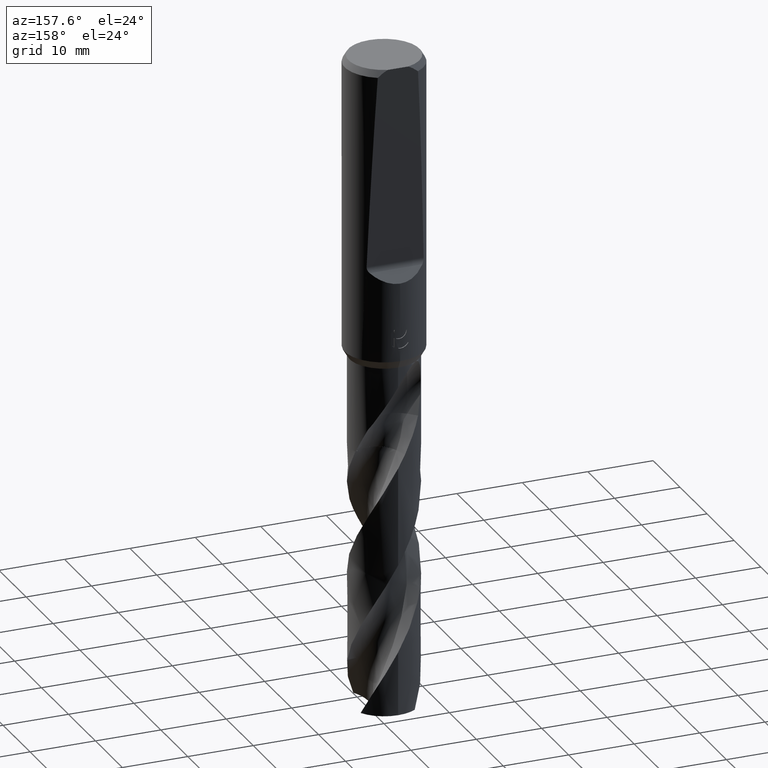
[diagram: clean part render]
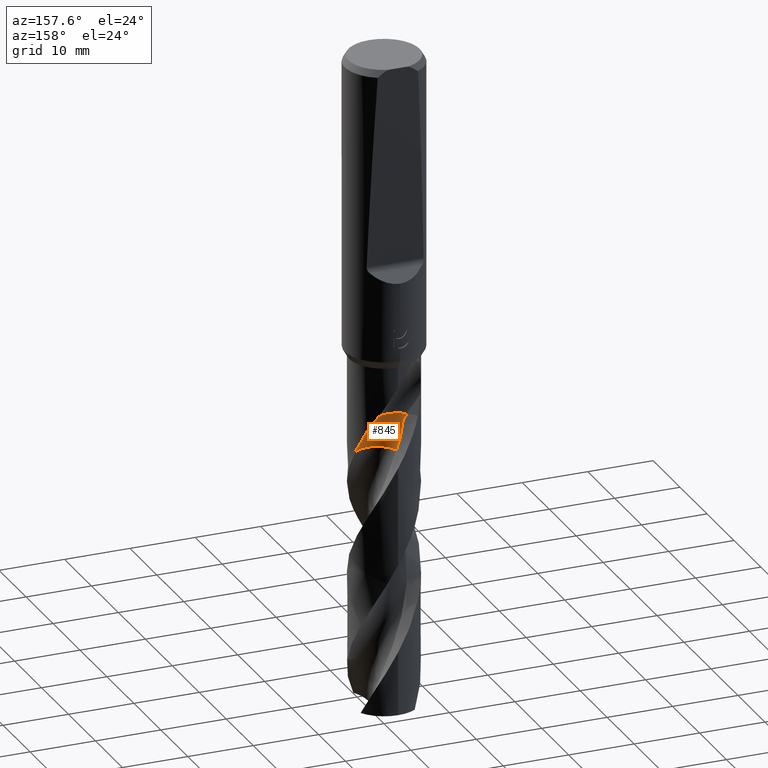
[diagram: same view with one face highlighted and labeled with its STEP entity id]
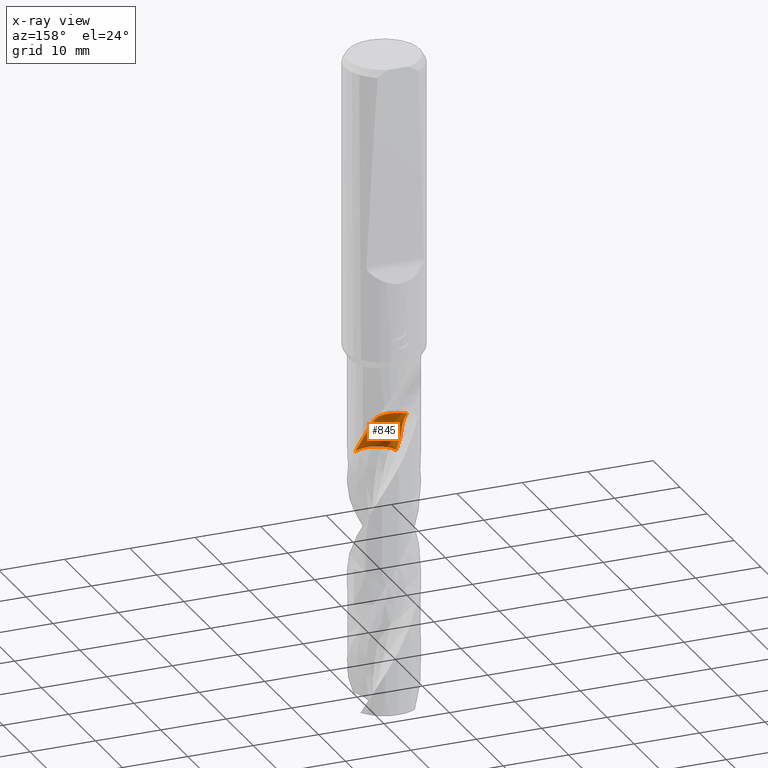
[diagram: x-ray of the same camera — body ghosted, the highlighted face saturated]
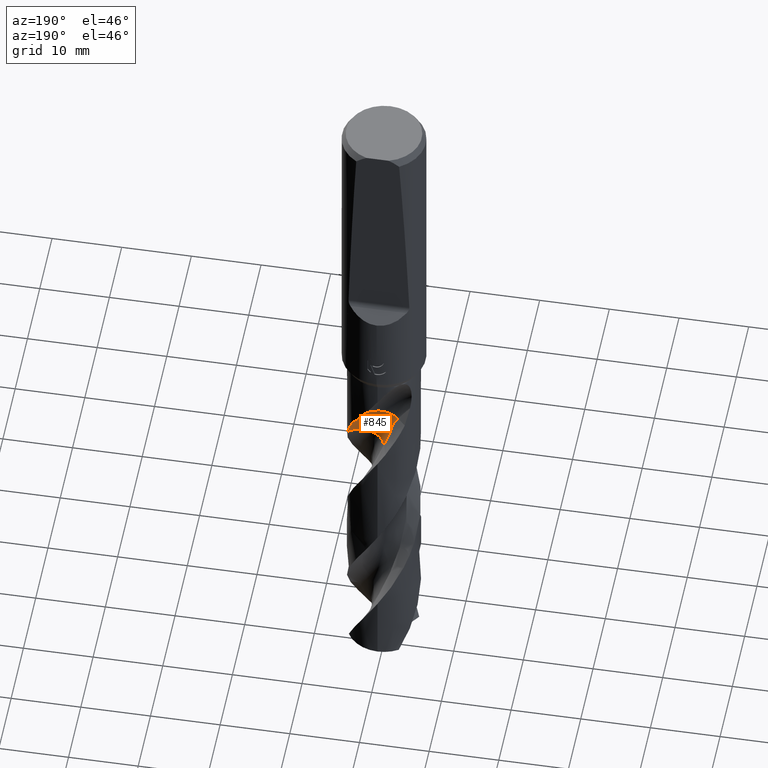
[diagram: same view with one face highlighted and labeled with its STEP entity id]
A machine part, auxiliary view. The second image highlights one B-rep face of the part: STEP entity #845.
The next image is the same camera in x-ray: the body ghosted, the highlighted face saturated — about 0% of this face is hidden behind the body in this view.
A second angle (auxiliary view) of the same face is appended — the face is thin or edge-on in the first view.
In plain terms, the highlighted face is a freeform B-spline surface patch.
Its self-contained STEP definition (entity closure, byte-faithful):
#353=VERTEX_POINT('',#943);
#371=EDGE_CURVE('',#723,#805,#962,.T.);
#443=VERTEX_POINT('',#1040);
#461=EDGE_CURVE('',#443,#723,#1059,.T.);
#547=EDGE_CURVE('',#353,#741,#1156,.T.);
#593=EDGE_CURVE('',#805,#353,#1202,.T.);
#723=VERTEX_POINT('',#1345);
#741=VERTEX_POINT('',#1365);
#805=VERTEX_POINT('',#1435);
#837=EDGE_CURVE('',#741,#443,#1468,.T.);
#845=ADVANCED_FACE('',(#1478),#1479,.F.);
#943=CARTESIAN_POINT('',(5.02114459693165,1.53316891982068,-60.0));
#962=B_SPLINE_CURVE_WITH_KNOTS('',3,(#1877,#1878,#1879,#1880,#1881,#1882,#1883,#1884,#1885,#1886,#1887,#1888,#1889,#1890,#1891,#1892,#1893,#1894,#1895,#1896,#1897,#1898,#1899,#1900,#1901,#1902,#1903,#1904,#1905,#1906,#1907,#1908,#1909,#1910,#1911,#1912,#1913,#1914,#1915,#1916,#1917,#1918,#1919,#1920,#1921,#1922,#1923,#1924,#1925,#1926,#1927,#1928,#1929,#1930,#1931,#1932,#1933,#1934),.UNSPECIFIED.,.F.,.F.,(4,1,2,2,2,2,2,2,1,2,1,2,1,2,1,2,1,2,1,2,1,2,1,2,1,2,1,2,1,2,1,2,1,2,2,4),(0.0,0.946443982491389,1.89288796498278,2.83933194747417,3.78577592996556,4.73221991245695,5.67866389494833,7.57155185993111,9.46443982491389,11.3573277898967,13.2502157548794,15.1431037198622,17.035991684845,18.9288796498278,20.8217676148106,22.7146555797933,24.6075435447761,26.5004315097589,28.3933194747417,30.2862074397245,32.1790954047072,34.07198336969,35.9648713346728,37.8577592996556,39.7506472646383,41.6435352296211,43.5364231946039,45.4293111595867,47.3221991245695,49.2150870895522,51.107975054535,53.0008630195178,54.8937509845006,56.7866389494833,58.6795269144661,60.5724148794489),.UNSPECIFIED.);
#1040=CARTESIAN_POINT('',(-0.563884144710428,1.62070661058819,-54.943));
#1059=CIRCLE('',#3233,3.5);
#1156=B_SPLINE_CURVE_WITH_KNOTS('',3,(#5971,#5972,#5973,#5974,#5975,#5976,#5977,#5978,#5979,#5980,#5981,#5982,#5983,#5984),.UNSPECIFIED.,.F.,.F.,(4,2,2,2,2,2,4),(0.0,1.45953664478286,1.73624144334719,2.75274637449032,3.80473915515668,4.39845383951045,5.75617239746406),.UNSPECIFIED.);
#1202=B_SPLINE_CURVE_WITH_KNOTS('',3,(#6165,#6166,#6167,#6168,#6169,#6170,#6171,#6172,#6173,#6174,#6175,#6176,#6177,#6178),.UNSPECIFIED.,.F.,.F.,(4,2,2,2,2,2,4),(0.0,1.3665820209171,2.73238531721024,4.09801201521994,5.46414487560331,6.38323774212243,7.30235332137637),.UNSPECIFIED.);
#1345=CARTESIAN_POINT('',(-2.47487373408221,2.6001262659178,-54.943));
#1365=CARTESIAN_POINT('',(3.34537559219275,4.04610456453624,-54.943));
#1435=CARTESIAN_POINT('',(-0.555753608563037,3.25365689234293,-60.0));
#1468=CIRCLE('',#8411,3.5);
#1478=FACE_OUTER_BOUND('',#8421,.T.);
#1479=B_SPLINE_SURFACE_WITH_KNOTS('',3,3,((#8422,#8423,#8424,#8425,#8426,#8427,#8428,#8429,#8430,#8431,#8432,#8433,#8434,#8435,#8436,#8437,#8438,#8439,#8440,#8441,#8442,#8443,#8444,#8445,#8446,#8447,#8448,#8449,#8450,#8451,#8452,#8453,#8454,#8455,#8456,#8457,#8458,#8459,#8460,#8461,#8462,#8463,#8464,#8465,#8466,#8467,#8468,#8469,#8470,#8471,#8472,#8473,#8474,#8475,#8476,#8477,#8478,#8479),(#8480,#8481,#8482,#8483,#8484,#8485,#8486,#8487,#8488,#8489,#8490,#8491,#8492,#8493,#8494,#8495,#8496,#8497,#8498,#8499,#8500,#8501,#8502,#8503,#8504,#8505,#8506,#8507,#8508,#8509,#8510,#8511,#8512,#8513,#8514,#8515,#8516,#8517,#8518,#8519,#8520,#8521,#8522,#8523,#8524,#8525,#8526,#8527,#8528,#8529,#8530,#8531,#8532,#8533,#8534,#8535,#8536,#8537),(#8538,#8539,#8540,#8541,#8542,#8543,#8544,#8545,#8546,#8547,#8548,#8549,#8550,#8551,#8552,#8553,#8554,#8555,#8556,#8557,#8558,#8559,#8560,#8561,#8562,#8563,#8564,#8565,#8566,#8567,#8568,#8569,#8570,#8571,#8572,#8573,#8574,#8575,#8576,#8577,#8578,#8579,#8580,#8581,#8582,#8583,#8584,#8585,#8586,#8587,#8588,#8589,#8590,#8591,#8592,#8593,#8594,#8595),(#8596,#8597,#8598,#8599,#8600,#8601,#8602,#8603,#8604,#8605,#8606,#8607,#8608,#8609,#8610,#8611,#8612,#8613,#8614,#8615,#8616,#8617,#8618,#8619,#8620,#8621,#8622,#8623,#8624,#8625,#8626,#8627,#8628,#8629,#8630,#8631,#8632,#8633,#8634,#8635,#8636,#8637,#8638,#8639,#8640,#8641,#8642,#8643,#8644,#8645,#8646,#8647,#8648,#8649,#8650,#8651,#8652,#8653),(#8654,#8655,#8656,#8657,#8658,#8659,#8660,#8661,#8662,#8663,#8664,#8665,#8666,#8667,#8668,#8669,#8670,#8671,#8672,#8673,#8674,#8675,#8676,#8677,#8678,#8679,#8680,#8681,#8682,#8683,#8684,#8685,#8686,#8687,#8688,#8689,#8690,#8691,#8692,#8693,#8694,#8695,#8696,#8697,#8698,#8699,#8700,#8701,#8702,#8703,#8704,#8705,#8706,#8707,#8708,#8709,#8710,#8711),(#8712,#8713,#8714,#8715,#8716,#8717,#8718,#8719,#8720,#8721,#8722,#8723,#8724,#8725,#8726,#8727,#8728,#8729,#8730,#8731,#8732,#8733,#8734,#8735,#8736,#8737,#8738,#8739,#8740,#8741,#8742,#8743,#8744,#8745,#8746,#8747,#8748,#8749,#8750,#8751,#8752,#8753,#8754,#8755,#8756,#8757,#8758,#8759,#8760,#8761,#8762,#8763,#8764,#8765,#8766,#8767,#8768,#8769),(#8770,#8771,#8772,#8773,#8774,#8775,#8776,#8777,#8778,#8779,#8780,#8781,#8782,#8783,#8784,#8785,#8786,#8787,#8788,#8789,#8790,#8791,#8792,#8793,#8794,#8795,#8796,#8797,#8798,#8799,#8800,#8801,#8802,#8803,#8804,#8805,#8806,#8807,#8808,#8809,#8810,#8811,#8812,#8813,#8814,#8815,#8816,#8817,#8818,#8819,#8820,#8821,#8822,#8823,#8824,#8825,#8826,#8827),(#8828,#8829,#8830,#8831,#8832,#8833,#8834,#8835,#8836,#8837,#8838,#8839,#8840,#8841,#8842,#8843,#8844,#8845,#8846,#8847,#8848,#8849,#8850,#8851,#8852,#8853,#8854,#8855,#8856,#8857,#8858,#8859,#8860,#8861,#8862,#8863,#8864,#8865,#8866,#8867,#8868,#8869,#8870,#8871,#8872,#8873,#8874,#8875,#8876,#8877,#8878,#8879,#8880,#8881,#8882,#8883,#8884,#8885),(#8886,#8887,#8888,#8889,#8890,#8891,#8892,#8893,#8894,#8895,#8896,#8897,#8898,#8899,#8900,#8901,#8902,#8903,#8904,#8905,#8906,#8907,#8908,#8909,#8910,#8911,#8912,#8913,#8914,#8915,#8916,#8917,#8918,#8919,#8920,#8921,#8922,#8923,#8924,#8925,#8926,#8927,#8928,#8929,#8930,#8931,#8932,#8933,#8934,#8935,#8936,#8937,#8938,#8939,#8940,#8941,#8942,#8943),(#8944,#8945,#8946,#8947,#8948,#8949,#8950,#8951,#8952,#8953,#8954,#8955,#8956,#8957,#8958,#8959,#8960,#8961,#8962,#8963,#8964,#8965,#8966,#8967,#8968,#8969,#8970,#8971,#8972,#8973,#8974,#8975,#8976,#8977,#8978,#8979,#8980,#8981,#8982,#8983,#8984,#8985,#8986,#8987,#8988,#8989,#8990,#8991,#8992,#8993,#8994,#8995,#8996,#8997,#8998,#8999,#9000,#9001),(#9002,#9003,#9004,#9005,#9006,#9007,#9008,#9009,#9010,#9011,#9012,#9013,#9014,#9015,#9016,#9017,#9018,#9019,#9020,#9021,#9022,#9023,#9024,#9025,#9026,#9027,#9028,#9029,#9030,#9031,#9032,#9033,#9034,#9035,#9036,#9037,#9038,#9039,#9040,#9041,#9042,#9043,#9044,#9045,#9046,#9047,#9048,#9049,#9050,#9051,#9052,#9053,#9054,#9055,#9056,#9057,#9058,#9059)),.UNSPECIFIED.,.F.,.F.,.F.,(4,1,1,1,1,1,1,1,4),(4,1,2,2,2,2,2,2,1,2,1,2,1,2,1,2,1,2,1,2,1,2,1,2,1,2,1,2,1,2,1,2,1,2,2,4),(-2.39901857237366E-016,0.392700971525963,0.785401943051926,1.17810291457789,1.57080388610385,1.96350485762981,2.35620582915578,2.74890680068174,3.1416077722077),(0.0,0.946443982491389,1.89288796498278,2.83933194747417,3.78577592996556,4.73221991245695,5.67866389494833,7.57155185993111,9.46443982491389,11.3573277898967,13.2502157548794,15.1431037198622,17.035991684845,18.9288796498278,20.8217676148106,22.7146555797933,24.6075435447761,26.5004315097589,28.3933194747417,30.2862074397245,32.1790954047072,34.07198336969,35.9648713346728,37.8577592996556,39.7506472646383,41.6435352296211,43.5364231946039,45.4293111595867,47.3221991245695,49.2150870895522,51.107975054535,53.0008630195178,54.8937509845006,56.7866389494833,58.6795269144661,60.5724148794489),.UNSPECIFIED.);
#1877=CARTESIAN_POINT('',(-2.4748737340822,2.6001262659178,-54.943));
#1878=CARTESIAN_POINT('',(-2.27351638195796,2.58742748921643,-55.1877789103807));
#1879=CARTESIAN_POINT('',(-1.9415901267603,2.59845618372092,-55.6762779263662));
#1880=CARTESIAN_POINT('',(-1.75150800911181,2.67434617195247,-56.163885936996));
#1881=CARTESIAN_POINT('',(-1.62629745382989,2.78793800961377,-56.653886991376));
#1882=CARTESIAN_POINT('',(-1.5701941947917,2.84763826918763,-56.8993317770672));
#1883=CARTESIAN_POINT('',(-1.46633182949196,2.97370083400805,-57.3925242642537));
#1884=CARTESIAN_POINT('',(-1.39821417140131,3.02406725904404,-57.639014577145));
#1885=CARTESIAN_POINT('',(-1.23776635554506,3.09814724549622,-58.1300739018366));
#1886=CARTESIAN_POINT('',(-1.1506484338099,3.12683693470541,-58.3751677705233));
#1887=CARTESIAN_POINT('',(-0.967048017738718,3.16832741668427,-58.8638598888724));
#1888=CARTESIAN_POINT('',(-0.877161342690742,3.18842756558869,-59.1083755716162));
#1889=CARTESIAN_POINT('',(-0.612460879576035,3.2473877399581,-59.8429448956152));
#1890=CARTESIAN_POINT('',(-0.435442636769879,3.2755942922521,-60.3329970830217));
#1891=CARTESIAN_POINT('',(-0.0837510450312301,3.31317433849123,-61.3147300857006));
#1892=CARTESIAN_POINT('',(0.276809123280162,3.31050604819743,-62.2955031986769));
#1893=CARTESIAN_POINT('',(0.631438444100906,3.24900894452016,-63.2752372900725));
#1894=CARTESIAN_POINT('',(0.977768670285636,3.16641019543823,-64.2558504714926));
#1895=CARTESIAN_POINT('',(1.31837316730188,3.04779523206942,-65.2365966287357));
#1896=CARTESIAN_POINT('',(1.63492895886928,2.87647517390271,-66.2168908702173));
#1897=CARTESIAN_POINT('',(1.93696729205407,2.68844029278274,-67.1973600265285));
#1898=CARTESIAN_POINT('',(2.22208997927119,2.46797056039849,-68.1780319367491));
#1899=CARTESIAN_POINT('',(2.4674721132161,2.20468435046278,-69.1583421266844));
#1900=CARTESIAN_POINT('',(2.69359711628048,1.92987976970318,-70.1388424174606));
#1901=CARTESIAN_POINT('',(2.89336572821884,1.6298046363281,-71.1195253460493));
#1902=CARTESIAN_POINT('',(3.04193319180549,1.30201701421496,-72.0998257684721));
#1903=CARTESIAN_POINT('',(3.16866610889075,0.969536323948642,-73.080316920864));
#1904=CARTESIAN_POINT('',(3.2623088847225,0.621457844459337,-74.061000342814));
#1905=CARTESIAN_POINT('',(3.29844707135374,0.263356024660443,-75.0413052140412));
#1906=CARTESIAN_POINT('',(3.31232421919551,-0.0922487898865187,-76.0217948756148));
#1907=CARTESIAN_POINT('',(3.2899232408048,-0.452038127106696,-77.0024736220424));
#1908=CARTESIAN_POINT('',(3.2099430534174,-0.802941057510992,-77.9827792365565));
#1909=CARTESIAN_POINT('',(3.10970213187364,-1.14437697903068,-78.9632776569394));
#1910=CARTESIAN_POINT('',(2.97371834927876,-1.47821217713721,-79.943961739754));
#1911=CARTESIAN_POINT('',(2.78598272646684,-1.78525549062794,-80.9242634250008));
#1912=CARTESIAN_POINT('',(2.58207563175119,-2.07686353929632,-81.9047530517844));
#1913=CARTESIAN_POINT('',(2.34668859576261,-2.34985761220497,-82.8854343107934));
#1914=CARTESIAN_POINT('',(2.07072495996632,-2.58091317107932,-83.8657382379031));
#1915=CARTESIAN_POINT('',(1.78432648134677,-2.79215235284222,-84.8462286480465));
#1916=CARTESIAN_POINT('',(1.47408597305824,-2.97572850497727,-85.8269100635993));
#1917=CARTESIAN_POINT('',(1.13884985656848,-3.10667509181581,-86.807219117495));
#1918=CARTESIAN_POINT('',(0.800063228397774,-3.21554023104668,-87.7877198073485));
#1919=CARTESIAN_POINT('',(0.447493229331296,-3.29057243965948,-88.7683969931449));
#1920=CARTESIAN_POINT('',(0.0880339721091567,-3.30776800678923,-89.7486870463197));
#1921=CARTESIAN_POINT('',(-0.26773467445178,-3.30293283095139,-90.7291698408851));
#1922=CARTESIAN_POINT('',(-0.625821837886088,-3.2615218154143,-91.7098764464416));
#1923=CARTESIAN_POINT('',(-0.972034836253861,-3.16280686635009,-92.6902104937302));
#1924=CARTESIAN_POINT('',(-1.30770114847617,-3.04425420866256,-93.6707031268978));
#1925=CARTESIAN_POINT('',(-1.63383273158254,-2.8908084189915,-94.6512872016781));
#1926=CARTESIAN_POINT('',(-1.93058349264346,-2.68773884893207,-95.6315237640093));
#1927=CARTESIAN_POINT('',(-2.21118224631007,-2.46947475345802,-96.6120745159986));
#1928=CARTESIAN_POINT('',(-2.47125494654748,-2.21950269649488,-97.5930793457696));
#1929=CARTESIAN_POINT('',(-2.68636355751695,-1.92970495269889,-98.5735372189441));
#1930=CARTESIAN_POINT('',(-2.88076270011351,-1.63047042697458,-99.5537655084726));
#1931=CARTESIAN_POINT('',(-2.96549228593302,-1.47287431167652,-100.043546257825));
#1932=CARTESIAN_POINT('',(-3.11283463734925,-1.15081440321019,-101.023159251486));
#1933=CARTESIAN_POINT('',(-3.16516334473377,-0.975264705216611,-101.513461647325));
#1934=CARTESIAN_POINT('',(-3.1970527129246,-0.792497134050531,-102.003273770422));
#3233=AXIS2_PLACEMENT_3D('',#9274,#9275,#9276);
#5971=CARTESIAN_POINT('',(5.02114459693166,1.53316891982066,-60.0));
#5972=CARTESIAN_POINT('',(4.94992024080831,1.76642944727807,-59.5790359246933));
#5973=CARTESIAN_POINT('',(4.86138884135209,1.99799989386638,-59.1526418161373));
#5974=CARTESIAN_POINT('',(4.73526434638125,2.26760263851833,-58.6511948895648));
#5975=CARTESIAN_POINT('',(4.71501595048499,2.30941194156556,-58.5733851567633));
#5976=CARTESIAN_POINT('',(4.61550659812103,2.50800398404944,-58.1990856509448));
#5977=CARTESIAN_POINT('',(4.52923998184377,2.66007346009674,-57.9028778152756));
#5978=CARTESIAN_POINT('',(4.34922419079346,2.9455404634327,-57.2990885413121));
#5979=CARTESIAN_POINT('',(4.27822255898707,3.04637297986638,-57.0563440950812));
#5980=CARTESIAN_POINT('',(4.14142497782853,3.22766360822748,-56.631051394511));
#5981=CARTESIAN_POINT('',(4.06993124228739,3.31840121341509,-56.4128859900162));
#5982=CARTESIAN_POINT('',(3.82092238546568,3.61030674214935,-55.7580916757865));
#5983=CARTESIAN_POINT('',(3.6096455721663,3.827602465381,-55.341976706097));
#5984=CARTESIAN_POINT('',(3.34537559219275,4.04610456453624,-54.943));
#6165=CARTESIAN_POINT('',(-0.555753608563052,3.25365689234293,-60.0000000000001));
#6166=CARTESIAN_POINT('',(-0.427965391350047,2.81642088135171,-60.0000000000001));
#6167=CARTESIAN_POINT('',(-0.216003815024955,2.40833227136189,-60.0));
#6168=CARTESIAN_POINT('',(0.352338338608499,1.69662958876822,-60.0));
#6169=CARTESIAN_POINT('',(0.703187378512146,1.39978138143835,-60.0));
#6170=CARTESIAN_POINT('',(1.49891432540288,0.957324724947158,-60.0));
#6171=CARTESIAN_POINT('',(1.9361442636367,0.815942245053709,-60.0));
#6172=CARTESIAN_POINT('',(2.84038314046608,0.708660171548345,-60.0));
#6173=CARTESIAN_POINT('',(3.29873525207055,0.743852917979076,-60.0));
#6174=CARTESIAN_POINT('',(4.03263299635848,0.947932791341799,-60.0));
#6175=CARTESIAN_POINT('',(4.3157467166761,1.06842055530132,-60.0));
#6176=CARTESIAN_POINT('',(4.84335361912049,1.3799990305183,-60.0));
#6177=CARTESIAN_POINT('',(5.08557476737225,1.56975018093217,-60.0));
#6178=CARTESIAN_POINT('',(5.30000000000001,1.78858127973513,-60.0));
#8411=AXIS2_PLACEMENT_3D('',#9658,#9659,#9660);
#8421=EDGE_LOOP('',(#9681,#9682,#9683,#9684,#9685));
#8422=CARTESIAN_POINT('',(2.47487373408221,7.5498737340822,-54.943));
#8423=CARTESIAN_POINT('',(2.67342751052768,7.53997853256085,-55.1878463051269));
#8424=CARTESIAN_POINT('',(3.07439280913202,7.4836253165222,-55.6799239865903));
#8425=CARTESIAN_POINT('',(3.4752776383567,7.33520199111018,-56.1737801725746));
#8426=CARTESIAN_POINT('',(3.86706847927309,7.13141047022982,-56.6645429002527));
#8427=CARTESIAN_POINT('',(4.05828323779697,7.01594834615407,-56.9092181697431));
#8428=CARTESIAN_POINT('',(4.42768038919246,6.75724907966935,-57.3961079109377));
#8429=CARTESIAN_POINT('',(4.60712238720866,6.62595477936178,-57.6397273262784));
#8430=CARTESIAN_POINT('',(4.95787541789662,6.36183527659157,-58.1290828631115));
#8431=CARTESIAN_POINT('',(5.12852280807286,6.2257425168791,-58.3742325355684));
#8432=CARTESIAN_POINT('',(5.46041404062673,5.94662084062227,-58.8662108862423));
#8433=CARTESIAN_POINT('',(5.62042326828035,5.79920744466536,-59.1120144702665));
#8434=CARTESIAN_POINT('',(6.07981371307679,5.33365918647601,-59.8482808209038));
#8435=CARTESIAN_POINT('',(6.36046016699752,4.99733877302444,-60.3387430500055));
#8436=CARTESIAN_POINT('',(6.86015149368743,4.27800212510885,-61.3178493024466));
#8437=CARTESIAN_POINT('',(7.30389566049918,3.5216659870804,-62.29802963016));
#8438=CARTESIAN_POINT('',(7.6206752506476,2.70459022041254,-63.2793701011488));
#8439=CARTESIAN_POINT('',(7.86630652432282,1.86493989606671,-64.2597283941685));
#8440=CARTESIAN_POINT('',(8.04602203652455,1.00740739959216,-65.2399381805161));
#8441=CARTESIAN_POINT('',(8.08572759512434,0.131767751415383,-66.2206529695545));
#8442=CARTESIAN_POINT('',(8.05041050036129,-0.742592684799922,-67.2011722980207));
#8443=CARTESIAN_POINT('',(7.94684659152438,-1.61273907249469,-68.1814650601465));
#8444=CARTESIAN_POINT('',(7.70496619378514,-2.45522465428737,-69.1621619746537));
#8445=CARTESIAN_POINT('',(7.39258363928511,-3.27257884592771,-70.1426464834381));
#8446=CARTESIAN_POINT('',(7.01686074813866,-4.06420176396863,-71.1229269252564));
#8447=CARTESIAN_POINT('',(6.51878903967785,-4.78548254884284,-72.1036347693696));
#8448=CARTESIAN_POINT('',(5.96185245394768,-5.46041244718305,-73.0841295066205));
#8449=CARTESIAN_POINT('',(5.35311786644764,-6.09072915874775,-74.0644094168164));
#8450=CARTESIAN_POINT('',(4.65094685782671,-6.61536812504895,-75.045112281161));
#8451=CARTESIAN_POINT('',(3.90781761379029,-7.07733596600542,-76.0256086449831));
#8452=CARTESIAN_POINT('',(3.129816934602,-7.48049878612146,-77.0058937097634));
#8453=CARTESIAN_POINT('',(2.29694499978359,-7.7536656782686,-77.9865957631983));
#8454=CARTESIAN_POINT('',(1.44523515550134,-7.95434332649601,-78.9670824794499));
#8455=CARTESIAN_POINT('',(0.579241255851254,-8.08816212060412,-79.947361840279));
#8456=CARTESIAN_POINT('',(-0.297270782803529,-8.08126300247737,-80.9280682147604));
#8457=CARTESIAN_POINT('',(-1.16849851750898,-7.99964244505742,-81.9085642399171));
#8458=CARTESIAN_POINT('',(-2.03191569787772,-7.8501071560189,-82.8888457917596));
#8459=CARTESIAN_POINT('',(-2.86039255725638,-7.56390252775019,-83.8695499242177));
#8460=CARTESIAN_POINT('',(-3.6600288053008,-7.20860478104824,-84.8500470114586));
#8461=CARTESIAN_POINT('',(-4.43060370238751,-6.79142435705246,-85.8303320000843));
#8462=CARTESIAN_POINT('',(-5.12445552759961,-6.25582471208297,-86.8110294532117));
#8463=CARTESIAN_POINT('',(-5.76891889445161,-5.66392038653411,-87.7915078651221));
#8464=CARTESIAN_POINT('',(-6.36609237884503,-5.02263634052836,-88.7717841541939));
#8465=CARTESIAN_POINT('',(-6.85274045342346,-4.29358916741857,-89.7525062009201));
#8466=CARTESIAN_POINT('',(-7.27458634340609,-3.52693286782979,-90.7330310019216));
#8467=CARTESIAN_POINT('',(-7.6358696359176,-2.72861988116524,-91.7133238371962));
#8468=CARTESIAN_POINT('',(-7.86455125860027,-1.8825041115237,-92.6939804225804));
#8469=CARTESIAN_POINT('',(-8.01994418051895,-1.02145772404071,-93.6743891597096));
#8470=CARTESIAN_POINT('',(-8.10772208092199,-0.149593302275281,-94.6546250897801));
#8471=CARTESIAN_POINT('',(-8.05404625716164,0.725446567349192,-95.6354344361638));
#8472=CARTESIAN_POINT('',(-7.92580306420426,1.5912754286819,-96.6161485336438));
#8473=CARTESIAN_POINT('',(-7.73056701045527,2.44553990825768,-97.5966110187834));
#8474=CARTESIAN_POINT('',(-7.40189391735927,3.25763489136302,-98.5771668473791));
#8475=CARTESIAN_POINT('',(-7.00637663063906,4.03733218064775,-99.5572054867));
#8476=CARTESIAN_POINT('',(-6.77700613297327,4.41101312634371,-100.047210543409));
#8477=CARTESIAN_POINT('',(-6.25716173392401,5.11503954821899,-101.027300440192));
#8478=CARTESIAN_POINT('',(-5.97358354089432,5.44669327750087,-101.516859959728));
#8479=CARTESIAN_POINT('',(-5.66972218601171,5.75623498100793,-102.006928803265));
#8480=CARTESIAN_POINT('',(2.79882175776234,7.22589821207784,-54.943));
#8481=CARTESIAN_POINT('',(2.99755903619002,7.21618649603325,-55.1878512475892));
#8482=CARTESIAN_POINT('',(3.39411409766309,7.15531491204915,-55.6801913874101));
#8483=CARTESIAN_POINT('',(3.78031604060004,6.99309448305246,-56.1745058132688));
#8484=CARTESIAN_POINT('',(4.15133318584506,6.77185608101794,-56.6653244008583));
#8485=CARTESIAN_POINT('',(4.33108335969935,6.64755155967086,-56.9099432360345));
#8486=CARTESIAN_POINT('',(4.67529783088999,6.37147451480823,-57.3963707332069));
#8487=CARTESIAN_POINT('',(4.84284982648889,6.23289452316655,-57.6397795963661));
#8488=CARTESIAN_POINT('',(5.17146711790961,5.95632045537494,-58.1290101833491));
#8489=CARTESIAN_POINT('',(5.33132925643363,5.81476114358753,-58.3741639469747));
#8490=CARTESIAN_POINT('',(5.64223591247653,5.52593467930176,-58.8663833064185));
#8491=CARTESIAN_POINT('',(5.79128105772267,5.3739321907883,-59.11228134144));
#8492=CARTESIAN_POINT('',(6.21634163940516,4.89564287715039,-59.8486721651037));
#8493=CARTESIAN_POINT('',(6.47312941469025,4.55254100294966,-60.3391644606841));
#8494=CARTESIAN_POINT('',(6.92328025684933,3.82351991637894,-61.3180780616273));
#8495=CARTESIAN_POINT('',(7.31769652320999,3.06174144136964,-62.2982149199662));
#8496=CARTESIAN_POINT('',(7.58502336804173,2.24714508572219,-63.2796731992754));
#8497=CARTESIAN_POINT('',(7.78110579442975,1.41408764305511,-64.2600128008011));
#8498=CARTESIAN_POINT('',(7.9124595272026,0.567087405324159,-65.2401832454776));
#8499=CARTESIAN_POINT('',(7.90606800401384,-0.290430364373805,-66.2209288866366));
#8500=CARTESIAN_POINT('',(7.82583172790029,-1.14270891307139,-67.2014518829784));
#8501=CARTESIAN_POINT('',(7.67974749169862,-1.98741390302668,-68.1817168432298));
#8502=CARTESIAN_POINT('',(7.39995974613171,-2.79800642525721,-69.1624421292708));
#8503=CARTESIAN_POINT('',(7.05206873738772,-3.58011370419094,-70.142925464335));
#8504=CARTESIAN_POINT('',(6.64417559554506,-4.33406925277773,-71.1231763930611));
#8505=CARTESIAN_POINT('',(6.12035148852348,-5.01302628098465,-72.103914134413));
#8506=CARTESIAN_POINT('',(5.5410034639889,-5.64320893331087,-73.0844091064079));
#8507=CARTESIAN_POINT('',(4.91379831053824,-6.2275541827926,-74.0646594387891));
#8508=CARTESIAN_POINT('',(4.20072947775457,-6.70387019395131,-75.0453915013246));
#8509=CARTESIAN_POINT('',(3.45064087991695,-7.11629154973248,-76.0258883346348));
#8510=CARTESIAN_POINT('',(2.66980350688152,-7.47000015665661,-77.0061445233056));
#8511=CARTESIAN_POINT('',(1.84202152295012,-7.69389035111221,-77.986875706396));
#8512=CARTESIAN_POINT('',(0.999526431181234,-7.84538463384847,-78.9673614836715));
#8513=CARTESIAN_POINT('',(0.146625666115108,-7.93142473341297,-79.947611237495));
#8514=CARTESIAN_POINT('',(-0.709336842101493,-7.8794459518648,-80.9283472274151));
#8515=CARTESIAN_POINT('',(-1.5561348454405,-7.75415018043899,-81.908843780746));
#8516=CARTESIAN_POINT('',(-2.39189567045405,-7.56351143972124,-82.8890959689452));
#8517=CARTESIAN_POINT('',(-3.18651619732551,-7.24114614214726,-83.8698294822272));
#8518=CARTESIAN_POINT('',(-3.94907108136198,-6.85225850422589,-84.8503270389562));
#8519=CARTESIAN_POINT('',(-4.68032509917902,-6.40495080573101,-85.8305829959145));
#8520=CARTESIAN_POINT('',(-5.33055033925859,-5.84588155755392,-86.81130884805));
#8521=CARTESIAN_POINT('',(-5.92914737658029,-5.23397260915323,-87.7917857341241));
#8522=CARTESIAN_POINT('',(-6.47943719735446,-4.57668123001169,-88.7720325332734));
#8523=CARTESIAN_POINT('',(-6.91724317154329,-3.83931161648106,-89.7527863110871));
#8524=CARTESIAN_POINT('',(-7.28922756452279,-3.06833268148611,-90.7333141637611));
#8525=CARTESIAN_POINT('',(-7.60097151955868,-2.26981262572823,-91.7135766874224));
#8526=CARTESIAN_POINT('',(-7.78073595106524,-1.43139139145909,-92.6942568832277));
#8527=CARTESIAN_POINT('',(-7.88753304247749,-0.582146012252024,-93.6746595170118));
#8528=CARTESIAN_POINT('',(-7.9282910211764,0.274116134920491,-94.6548698457999));
#8529=CARTESIAN_POINT('',(-7.83063558583138,1.12621862134999,-95.6357213062338));
#8530=CARTESIAN_POINT('',(-7.66001029574579,1.96528688973155,-96.6164472582878));
#8531=CARTESIAN_POINT('',(-7.42522452784438,2.78974967505844,-97.5968700472869));
#8532=CARTESIAN_POINT('',(-7.06236850065895,3.5662525974631,-98.5774330724129));
#8533=CARTESIAN_POINT('',(-6.63540651644129,4.30733842441988,-99.5574577444634));
#8534=CARTESIAN_POINT('',(-6.39189409957199,4.66046084596962,-100.047479221832));
#8535=CARTESIAN_POINT('',(-5.84705177854748,5.32081870002962,-101.027604212848));
#8536=CARTESIAN_POINT('',(-5.55325751701977,5.63048688107613,-101.517109180515));
#8537=CARTESIAN_POINT('',(-5.24109970629415,5.91805327085883,-102.00719686226));
#8538=CARTESIAN_POINT('',(3.31774813583966,6.44926134261891,-54.9429999999998));
#8539=CARTESIAN_POINT('',(3.51692530869871,6.43984355102312,-55.1878593772005));
#8540=CARTESIAN_POINT('',(3.90286492689635,6.37169096815953,-55.6806311755743));
#8541=CARTESIAN_POINT('',(4.25422096870591,6.18772059963492,-56.1756992568522));
#8542=CARTESIAN_POINT('',(4.57676146277358,5.93985667359846,-56.6666097182059));
#8543=CARTESIAN_POINT('',(4.73007095538821,5.80243019725408,-56.9111357321076));
#8544=CARTESIAN_POINT('',(5.01701996479117,5.50161946102478,-57.3968029949251));
#8545=CARTESIAN_POINT('',(5.15789973441853,5.35319939350528,-57.6398655730384));
#8546=CARTESIAN_POINT('',(5.43730212036113,5.06052399923789,-58.1288906393539));
#8547=CARTESIAN_POINT('',(5.5734244608384,4.91232279054823,-58.374051135994));
#8548=CARTESIAN_POINT('',(5.83851156925831,4.61243564069552,-58.8666668868332));
#8549=CARTESIAN_POINT('',(5.96380825280676,4.4556168646773,-59.1127202726103));
#8550=CARTESIAN_POINT('',(6.31515696057128,3.96550247265357,-59.8493157715265));
#8551=CARTESIAN_POINT('',(6.52154066538126,3.61832828068139,-60.3398575374956));
#8552=CARTESIAN_POINT('',(6.86878022364484,2.88964285634411,-61.3184543043589));
#8553=CARTESIAN_POINT('',(7.16239726614759,2.1365979646942,-62.2985196581027));
#8554=CARTESIAN_POINT('',(7.33182539552021,1.34662487701685,-63.2801716977019));
#8555=CARTESIAN_POINT('',(7.43145274882771,0.54645419108096,-64.2604805580568));
#8556=CARTESIAN_POINT('',(7.47029158793163,-0.2602542320431,-65.2405863091014));
#8557=CARTESIAN_POINT('',(7.37893169753887,-1.06320476586921,-66.221382659293));
#8558=CARTESIAN_POINT('',(7.21765715837992,-1.85346611947196,-67.2019117318501));
#8559=CARTESIAN_POINT('',(6.99666727857923,-2.6303902317607,-68.1821309506464));
#8560=CARTESIAN_POINT('',(6.65376348744972,-3.36213572876898,-69.162902860271));
#8561=CARTESIAN_POINT('',(6.2488869506495,-4.05964357789337,-70.1433843307632));
#8562=CARTESIAN_POINT('',(5.79164578301365,-4.72548734012317,-71.1235866902587));
#8563=CARTESIAN_POINT('',(5.23315833719039,-5.30957386381214,-72.1043735604355));
#8564=CARTESIAN_POINT('',(4.62679120351176,-5.84136868681253,-73.084868997097));
#8565=CARTESIAN_POINT('',(3.98093388505495,-6.32644527089426,-74.0650706372357));
#8566=CARTESIAN_POINT('',(3.26529025944971,-6.70180207459062,-75.0458507030443));
#8567=CARTESIAN_POINT('',(2.52098869904408,-7.01238382652118,-76.026348359143));
#8568=CARTESIAN_POINT('',(1.75414528793937,-7.26607679415181,-77.0065570821585));
#8569=CARTESIAN_POINT('',(0.956136586360836,-7.39345842588208,-77.9873359942271));
#8570=CARTESIAN_POINT('',(0.151625550846977,-7.45027105559363,-78.9678204838915));
#8571=CARTESIAN_POINT('',(-0.656094603277907,-7.44598056809057,-79.948021300453));
#8572=CARTESIAN_POINT('',(-1.45304019654063,-7.31203318701179,-80.9288062147067));
#8573=CARTESIAN_POINT('',(-2.23362096417692,-7.10912025018725,-81.9093034336427));
#8574=CARTESIAN_POINT('',(-2.99773538601254,-6.84728978696928,-82.8895075063337));
#8575=CARTESIAN_POINT('',(-3.71027774776709,-6.4660818446916,-83.8702892131127));
#8576=CARTESIAN_POINT('',(-4.38532802214455,-6.02477442457839,-84.8507876455999));
#8577=CARTESIAN_POINT('',(-5.0259763366707,-5.53286137989313,-85.8309956783946));
#8578=CARTESIAN_POINT('',(-5.57963376565797,-4.94421150115914,-86.8117685598718));
#8579=CARTESIAN_POINT('',(-6.07856235842821,-4.31054107109311,-87.7922425414718));
#8580=CARTESIAN_POINT('',(-6.52873905038518,-3.63988571767188,-88.7724411730043));
#8581=CARTESIAN_POINT('',(-6.86557187340631,-2.90529741992101,-89.7532469267425));
#8582=CARTESIAN_POINT('',(-7.13613530025569,-2.14550313751081,-90.7337799486932));
#8583=CARTESIAN_POINT('',(-7.34873911357111,-1.36626901151382,-91.7139924677679));
#8584=CARTESIAN_POINT('',(-7.43374957484552,-0.562686207043029,-92.6947116500239));
#8585=CARTESIAN_POINT('',(-7.44806832006785,0.243637372819111,-93.6751040892123));
#8586=CARTESIAN_POINT('',(-7.40101071112314,1.05000339963055,-94.6552725314837));
#8587=CARTESIAN_POINT('',(-7.22453588850793,1.83875171834284,-95.6361929110782));
#8588=CARTESIAN_POINT('',(-6.97980600660835,2.60745626129068,-96.6169387676847));
#8589=CARTESIAN_POINT('',(-6.67778847293267,3.35660072231372,-97.5972959950767));
#8590=CARTESIAN_POINT('',(-6.26073467224841,4.0483411964729,-98.5778708638202));
#8591=CARTESIAN_POINT('',(-5.7862508685976,4.69971596506505,-99.5578726898593));
#8592=CARTESIAN_POINT('',(-5.52263594105303,5.00610629117096,-100.047921286978));
#8593=CARTESIAN_POINT('',(-4.94517370991343,5.56920459232421,-101.028103644982));
#8594=CARTESIAN_POINT('',(-4.63969445915168,5.8308483915003,-101.517519083123));
#8595=CARTESIAN_POINT('',(-4.31968601268772,6.07117421564884,-102.007637732757));
#8596=CARTESIAN_POINT('',(3.59111522779533,5.0750036311512,-54.9429999999999));
#8597=CARTESIAN_POINT('',(3.79107078891808,5.06574067682886,-55.1878644529412));
#8598=CARTESIAN_POINT('',(4.15811835580676,4.99359104066413,-55.6809057168943));
#8599=CARTESIAN_POINT('',(4.4486956531354,4.7994791568598,-56.1764442729616));
#8600=CARTESIAN_POINT('',(4.68876641024041,4.54254195309227,-56.6674120887365));
#8601=CARTESIAN_POINT('',(4.79789791794035,4.40210786807531,-56.9118801593071));
#8602=CARTESIAN_POINT('',(4.99128171416224,4.09989203876111,-57.39707283597));
#8603=CARTESIAN_POINT('',(5.08954680934495,3.95314557572615,-57.6399192413955));
#8604=CARTESIAN_POINT('',(5.29149765160304,3.66640675779266,-58.128816016322));
#8605=CARTESIAN_POINT('',(5.39090539990779,3.52262823501536,-58.3739807153539));
#8606=CARTESIAN_POINT('',(5.58614028184914,3.23371446308394,-58.8668439116806));
#8607=CARTESIAN_POINT('',(5.67575844884783,3.08385338737063,-59.1129942715957));
#8608=CARTESIAN_POINT('',(5.91815925421725,2.61966454561486,-59.8497175627797));
#8609=CARTESIAN_POINT('',(6.05234855437946,2.29578087413633,-60.3402901945873));
#8610=CARTESIAN_POINT('',(6.25715253735462,1.62663743647945,-61.3186891786736));
#8611=CARTESIAN_POINT('',(6.41608212283083,0.943560715710195,-62.2987098888058));
#8612=CARTESIAN_POINT('',(6.46396420412763,0.243912711170883,-63.2804828967608));
#8613=CARTESIAN_POINT('',(6.4487899627317,-0.45530886099764,-64.2607725519559));
#8614=CARTESIAN_POINT('',(6.38253893642878,-1.15306706642257,-65.2408379194513));
#8615=CARTESIAN_POINT('',(6.20474301236431,-1.83161480326914,-66.2216659487007));
#8616=CARTESIAN_POINT('',(5.96675591580588,-2.4894042636154,-67.2021987781053));
#8617=CARTESIAN_POINT('',(5.68086161132706,-3.12938881136665,-68.1823894600371));
#8618=CARTESIAN_POINT('',(5.29574548191692,-3.71562569766744,-69.1631904945301));
#8619=CARTESIAN_POINT('',(4.86045528390329,-4.26317171108716,-70.1436707626683));
#8620=CARTESIAN_POINT('',(4.38540184890636,-4.77857002594634,-71.1238428148178));
#8621=CARTESIAN_POINT('',(3.83333391989978,-5.21127381881884,-72.1046603936503));
#8622=CARTESIAN_POINT('',(3.24599986095076,-5.59119927161385,-73.0851560548108));
#8623=CARTESIAN_POINT('',(2.63127732044452,-5.9279887803197,-74.0653273515194));
#8624=CARTESIAN_POINT('',(1.9700210293235,-6.16194478247376,-75.0461373556032));
#8625=CARTESIAN_POINT('',(1.29220117765345,-6.3347057048594,-76.0266355410179));
#8626=CARTESIAN_POINT('',(0.602166703018463,-6.45781691058446,-77.0068145913138));
#8627=CARTESIAN_POINT('',(-0.0991772886652871,-6.46853553452188,-77.9876233929184));
#8628=CARTESIAN_POINT('',(-0.796692732743995,-6.41593052883317,-78.9681069582468));
#8629=CARTESIAN_POINT('',(-1.48994105545251,-6.31238389885739,-79.9482773455112));
#8630=CARTESIAN_POINT('',(-2.15803891335656,-6.09871232289164,-80.9290926816654));
#8631=CARTESIAN_POINT('',(-2.80229069107618,-5.82623926658183,-81.9095904352749));
#8632=CARTESIAN_POINT('',(-3.4262401773307,-5.50687066421058,-82.8897643625514));
#8633=CARTESIAN_POINT('',(-3.99124893328479,-5.09122784715528,-83.8705762429281));
#8634=CARTESIAN_POINT('',(-4.51493197084814,-4.62750233785319,-84.8510751439606));
#8635=CARTESIAN_POINT('',(-5.00440098083863,-4.12578168424979,-85.8312533611312));
#8636=CARTESIAN_POINT('',(-5.40724105644061,-3.55156995935635,-86.8120554530814));
#8637=CARTESIAN_POINT('',(-5.75554359414814,-2.94495447828695,-87.7925277927776));
#8638=CARTESIAN_POINT('',(-6.05929852628761,-2.31324773914374,-88.7726961760795));
#8639=CARTESIAN_POINT('',(-6.25778593100381,-1.64047799627433,-89.753534571373));
#8640=CARTESIAN_POINT('',(-6.3942072186732,-0.954405824584022,-90.7340706171918));
#8641=CARTESIAN_POINT('',(-6.48048054057286,-0.258812385568766,-91.7142520953899));
#8642=CARTESIAN_POINT('',(-6.45416738833231,0.442092998568686,-92.6949954966461));
#8643=CARTESIAN_POINT('',(-6.36495666639293,1.13584238022358,-93.6753816622761));
#8644=CARTESIAN_POINT('',(-6.22483548586914,1.82264496676349,-94.6555238605239));
#8645=CARTESIAN_POINT('',(-5.97549086024506,2.47834221768113,-95.6364873705059));
#8646=CARTESIAN_POINT('',(-5.66844935776673,3.10698743603492,-96.6172455401585));
#8647=CARTESIAN_POINT('',(-5.31648979587442,3.71315111747687,-97.5975619363963));
#8648=CARTESIAN_POINT('',(-4.87297953151281,4.25630414786471,-98.578144135007));
#8649=CARTESIAN_POINT('',(-4.38413253396508,4.7560653403348,-99.5581317465606));
#8650=CARTESIAN_POINT('',(-4.11948352103887,4.986148208241,-100.048197175301));
#8651=CARTESIAN_POINT('',(-3.55264426044483,5.39572576776905,-101.028415493972));
#8652=CARTESIAN_POINT('',(-3.2585389885267,5.58410312617263,-101.517775023699));
#8653=CARTESIAN_POINT('',(-2.95476860555858,5.75445001312456,-102.007912949754));
#8654=CARTESIAN_POINT('',(3.31776523382154,3.70074251866809,-54.9430000000003));
#8655=CARTESIAN_POINT('',(3.51849918722401,3.69132473705736,-55.1878616333659));
#8656=CARTESIAN_POINT('',(3.86656304063899,3.62271208189077,-55.6807532578183));
#8657=CARTESIAN_POINT('',(4.09710840099933,3.44248929801571,-56.1760305464803));
#8658=CARTESIAN_POINT('',(4.25751504635359,3.20872928094081,-56.6669665125698));
#8659=CARTESIAN_POINT('',(4.32468017732914,3.08242286587409,-56.9114667598697));
#8660=CARTESIAN_POINT('',(4.4310824022563,2.81471539851643,-57.3969229867879));
#8661=CARTESIAN_POINT('',(4.49061714300427,2.685823177799,-57.6398894356897));
#8662=CARTESIAN_POINT('',(4.62328399022194,2.43420858472271,-58.1288574586851));
#8663=CARTESIAN_POINT('',(4.69046437102565,2.3085662416099,-58.3740198235678));
#8664=CARTESIAN_POINT('',(4.82536367473302,2.05652190820276,-58.8667456034753));
#8665=CARTESIAN_POINT('',(4.88468191475362,1.92674246332119,-59.1128421112313));
#8666=CARTESIAN_POINT('',(5.03634948875841,1.52819831395623,-59.8494944417066));
#8667=CARTESIAN_POINT('',(5.11275285781518,1.25345993398288,-60.3400499263727));
#8668=CARTESIAN_POINT('',(5.20874928267047,0.693834246263997,-61.3185587499402));
#8669=CARTESIAN_POINT('',(5.27001975276442,0.1269425708072,-62.2986042438415));
#8670=CARTESIAN_POINT('',(5.2401741095962,-0.442742277446777,-63.2803100874003));
#8671=CARTESIAN_POINT('',(5.1575688275357,-1.00476620550357,-64.2606103931257));
#8672=CARTESIAN_POINT('',(5.03592109753995,-1.56165123850453,-65.2406981910325));
#8673=CARTESIAN_POINT('',(4.82587583923301,-2.09218813537649,-66.2215086440232));
#8674=CARTESIAN_POINT('',(4.56771066631072,-2.59823283982177,-67.2020393610732));
#8675=CARTESIAN_POINT('',(4.27425724934974,-3.0868638482348,-68.1822459012446));
#8676=CARTESIAN_POINT('',(3.90582601287639,-3.52251440314862,-69.1630307811247));
#8677=CARTESIAN_POINT('',(3.49982542004199,-3.91987498590329,-70.1435116827248));
#8678=CARTESIAN_POINT('',(3.06588886530653,-4.28946341195134,-71.1237005975102));
#8679=CARTESIAN_POINT('',(2.57768366364402,-4.58476458392563,-72.1045010949113));
#8680=CARTESIAN_POINT('',(2.06605202590402,-4.83166480804865,-73.0849966575075));
#8681=CARTESIAN_POINT('',(1.53684150509524,-5.04336981225433,-74.065184785095));
#8682=CARTESIAN_POINT('',(0.97994447905799,-5.16750183976686,-75.045978170262));
#8683=CARTESIAN_POINT('',(0.416287645938635,-5.23837457790438,-76.0264760616869));
#8684=CARTESIAN_POINT('',(-0.152812951157801,-5.2702376688849,-77.0066715827037));
#8685=CARTESIAN_POINT('',(-0.720205304989859,-5.21016594342894,-77.9874638078618));
#8686=CARTESIAN_POINT('',(-1.27699728228627,-5.09741793872805,-78.9679478572028));
#8687=CARTESIAN_POINT('',(-1.82650362596037,-4.94597729340412,-79.9481351686408));
#8688=CARTESIAN_POINT('',(-2.34505254748894,-4.70795832642873,-80.9289335912489));
#8689=CARTESIAN_POINT('',(-2.83673325063998,-4.4233912243111,-81.909431064184));
#8690=CARTESIAN_POINT('',(-3.30916827829986,-4.10450337269097,-82.8896217043046));
#8691=CARTESIAN_POINT('',(-3.72469618320195,-3.71350582141219,-83.8704168790211));
#8692=CARTESIAN_POINT('',(-4.09995515846731,-3.28699467285114,-84.8509154579538));
#8693=CARTESIAN_POINT('',(-4.44599954685671,-2.83406707762181,-85.8311103098962));
#8694=CARTESIAN_POINT('',(-4.71502795688805,-2.33090996899826,-86.8118960721098));
#8695=CARTESIAN_POINT('',(-4.9345237820024,-1.80693234678924,-87.7923694475287));
#8696=CARTESIAN_POINT('',(-5.1179077833496,-1.26724283887995,-88.7725545094221));
#8697=CARTESIAN_POINT('',(-5.21223782462738,-0.704528666466678,-89.7533748871982));
#8698=CARTESIAN_POINT('',(-5.2529403993197,-0.137900967995851,-90.7339091495765));
#8699=CARTESIAN_POINT('',(-5.2545076557428,0.432073772101177,-91.7141079338684));
#8700=CARTESIAN_POINT('',(-5.16463811084818,0.995515789949364,-92.6948378891382));
#8701=CARTESIAN_POINT('',(-5.02285915361965,1.54564107819647,-93.6752274993453));
#8702=CARTESIAN_POINT('',(-4.84251366203541,2.08636744219414,-94.6553842781168));
#8703=CARTESIAN_POINT('',(-4.5767628075079,2.59125549921599,-95.6363238955631));
#8704=CARTESIAN_POINT('',(-4.26575154225994,3.06665714991549,-96.6170751359354));
#8705=CARTESIAN_POINT('',(-3.92236819406991,3.52161179522492,-97.5974142933107));
#8706=CARTESIAN_POINT('',(-3.51127757711074,3.91736353979168,-98.5779923448064));
#8707=CARTESIAN_POINT('',(-3.06718097050116,4.27155556022701,-99.557987921721));
#8708=CARTESIAN_POINT('',(-2.83077831070462,4.43074387459526,-100.048043941566));
#8709=CARTESIAN_POINT('',(-2.33250346685062,4.70255214229424,-101.028242342418));
#8710=CARTESIAN_POINT('',(-2.07694437002709,4.82759279502329,-101.517632890222));
#8711=CARTESIAN_POINT('',(-1.8149558841036,4.93950169504613,-102.007760114851));
#8712=CARTESIAN_POINT('',(2.53931360795178,2.5356987895856,-54.9430000000001));
#8713=CARTESIAN_POINT('',(2.74070745422817,2.52584008686883,-55.1878513508119));
#8714=CARTESIAN_POINT('',(3.07258606134349,2.46775997470286,-55.6801970078148));
#8715=CARTESIAN_POINT('',(3.25298568304257,2.32334238009989,-56.1745210635603));
#8716=CARTESIAN_POINT('',(3.34866211551169,2.1414814853143,-56.6653408258339));
#8717=CARTESIAN_POINT('',(3.38246152749554,2.04428719186106,-56.9099584729382));
#8718=CARTESIAN_POINT('',(3.42170810817334,1.84174787872462,-57.3963762585466));
#8719=CARTESIAN_POINT('',(3.45229322156954,1.74417238356281,-57.6397806977457));
#8720=CARTESIAN_POINT('',(3.53439156782535,1.5515222602516,-58.1290086530248));
#8721=CARTESIAN_POINT('',(3.57873820093143,1.45496849245567,-58.3741625040583));
#8722=CARTESIAN_POINT('',(3.67200417380853,1.2600765808685,-58.8663869315402));
#8723=CARTESIAN_POINT('',(3.71101401861329,1.16044542543805,-59.1122869569343));
#8724=CARTESIAN_POINT('',(3.80397649746035,0.857271175398079,-59.8486803764668));
#8725=CARTESIAN_POINT('',(3.84579986585555,0.650050864965235,-60.3391733165746));
#8726=CARTESIAN_POINT('',(3.88318186396245,0.233245482096323,-61.3180828702195));
#8727=CARTESIAN_POINT('',(3.89868941787695,-0.188932586526881,-62.2982188147784));
#8728=CARTESIAN_POINT('',(3.84676783903853,-0.608802100375165,-63.2796795673851));
#8729=CARTESIAN_POINT('',(3.75436791496264,-1.01826714563721,-64.2600187801528));
#8730=CARTESIAN_POINT('',(3.63545038101847,-1.42380293514669,-65.2401884015286));
#8731=CARTESIAN_POINT('',(3.45225220273275,-1.80525443135468,-66.2209346723493));
#8732=CARTESIAN_POINT('',(3.23351538782176,-2.16338355271041,-67.2014577721298));
#8733=CARTESIAN_POINT('',(2.99099899593482,-2.50928943494931,-68.181722131768));
#8734=CARTESIAN_POINT('',(2.69560972166488,-2.812201560478,-69.1624480103157));
#8735=CARTESIAN_POINT('',(2.37414289830053,-3.08201772139075,-70.1429313345232));
#8736=CARTESIAN_POINT('',(2.0339926179829,-3.33263024624643,-71.1231816429617));
#8737=CARTESIAN_POINT('',(1.65737077132352,-3.52542742405261,-72.1039199850888));
#8738=CARTESIAN_POINT('',(1.26658574900081,-3.67839862456062,-73.0844150033726));
#8739=CARTESIAN_POINT('',(0.864245962871353,-3.80726486639788,-74.0646646770782));
#8740=CARTESIAN_POINT('',(0.445792220004626,-3.86986961250497,-75.045397381697));
#8741=CARTESIAN_POINT('',(0.0265992662805975,-3.89029850293688,-76.0258942007487));
#8742=CARTESIAN_POINT('',(-0.395853778581232,-3.88413895021331,-77.0061498271075));
#8743=CARTESIAN_POINT('',(-0.812400670039714,-3.80992686147499,-77.9868815369569));
#8744=CARTESIAN_POINT('',(-1.21616539781968,-3.69546675624237,-78.9673674003814));
#8745=CARTESIAN_POINT('',(-1.61454322082417,-3.55478575396632,-79.9476164383979));
#8746=CARTESIAN_POINT('',(-1.98560970298675,-3.3515029102748,-80.9283531196701));
#8747=CARTESIAN_POINT('',(-2.3317050205182,-3.11414903776048,-81.9088496274941));
#8748=CARTESIAN_POINT('',(-2.66434299675734,-2.85368767181278,-82.8891012416731));
#8749=CARTESIAN_POINT('',(-2.95120012174482,-2.54266341513752,-83.8698353563329));
#8750=CARTESIAN_POINT('',(-3.20357464435268,-2.20733354317885,-84.850332925546));
#8751=CARTESIAN_POINT('',(-3.43578439944263,-1.85437124164835,-85.8305882479295));
#8752=CARTESIAN_POINT('',(-3.60837863521478,-1.46806773177613,-86.8113147649515));
#8753=CARTESIAN_POINT('',(-3.74049693585171,-1.06972985808405,-87.7917915291312));
#8754=CARTESIAN_POINT('',(-3.84788638478175,-0.66111731236604,-88.7720377846007));
#8755=CARTESIAN_POINT('',(-3.88810429598418,-0.239940566176378,-89.7527921806044));
#8756=CARTESIAN_POINT('',(-3.88608401244063,0.179704769323382,-90.7333201323927));
#8757=CARTESIAN_POINT('',(-3.85746549252316,0.60120731056121,-91.7135819783584));
#8758=CARTESIAN_POINT('',(-3.76148275473927,1.01332777660851,-92.6942627223962));
#8759=CARTESIAN_POINT('',(-3.62609989887897,1.41064472388149,-93.6746651701908));
#8760=CARTESIAN_POINT('',(-3.4644932013136,1.80102109567309,-94.6548750232196));
#8761=CARTESIAN_POINT('',(-3.24129743347231,2.16030137439193,-95.6357272973024));
#8762=CARTESIAN_POINT('',(-2.98526260238772,2.49260538341694,-96.6164535745311));
#8763=CARTESIAN_POINT('',(-2.70766807402402,2.81114315730477,-97.5968754915688));
#8764=CARTESIAN_POINT('',(-2.38293754302038,3.08312049749884,-98.5774386289164));
#8765=CARTESIAN_POINT('',(-2.03589203470883,3.31994954754791,-99.5574630847871));
#8766=CARTESIAN_POINT('',(-1.85271585257389,3.42444934986862,-100.04748492688));
#8767=CARTESIAN_POINT('',(-1.47050847678744,3.59521413810869,-101.027610538888));
#8768=CARTESIAN_POINT('',(-1.27479940219303,3.67649032182583,-101.517114383631));
#8769=CARTESIAN_POINT('',(-1.0737756513741,3.7503989340685,-102.007202495996));
#8770=CARTESIAN_POINT('',(1.37427367950717,1.75724147564666,-54.9429999999999));
#8771=CARTESIAN_POINT('',(1.57610844776362,1.74672288700399,-55.1878351715099));
#8772=CARTESIAN_POINT('',(1.89706436410166,1.70456737391113,-55.6793216519503));
#8773=CARTESIAN_POINT('',(2.04483875968447,1.6124200016775,-56.1721456302047));
#8774=CARTESIAN_POINT('',(2.10057354459022,1.50327890550177,-56.6627825282212));
#8775=CARTESIAN_POINT('',(2.11468757599088,1.44574908743457,-56.907584923298));
#8776=CARTESIAN_POINT('',(2.11682838164925,1.32911637743567,-57.3955158868645));
#8777=CARTESIAN_POINT('',(2.13265194356749,1.27155233484124,-57.6396095781066));
#8778=CARTESIAN_POINT('',(2.19059596780169,1.152730069968,-58.1292465851367));
#8779=CARTESIAN_POINT('',(2.22497872044213,1.09178874551863,-58.3743870382089));
#8780=CARTESIAN_POINT('',(2.30165198486904,0.965631210482622,-58.8658224975466));
#8781=CARTESIAN_POINT('',(2.33343675525294,0.901625150593779,-59.1114133202));
#8782=CARTESIAN_POINT('',(2.40865968057131,0.709026693311907,-59.8473993153217));
#8783=CARTESIAN_POINT('',(2.44437353375076,0.577418109248633,-60.3377938089021));
#8784=CARTESIAN_POINT('',(2.48225780710922,0.314992265738736,-61.3173340020248));
#8785=CARTESIAN_POINT('',(2.51086571746202,0.0440248238719045,-62.2976122644019));
#8786=CARTESIAN_POINT('',(2.49588088910393,-0.228985394144588,-63.2786873468415));
#8787=CARTESIAN_POINT('',(2.45281386574537,-0.493756286684769,-64.2590877633543));
#8788=CARTESIAN_POINT('',(2.3943377800991,-0.760508498318473,-65.239386150566));
#8789=CARTESIAN_POINT('',(2.29299585162009,-1.01449716504037,-66.2200314586376));
#8790=CARTESIAN_POINT('',(2.1672911315846,-1.25105888986066,-67.2005425116216));
#8791=CARTESIAN_POINT('',(2.02645314896989,-1.48459686947141,-68.1808979013405));
#8792=CARTESIAN_POINT('',(1.84934282276236,-1.69282690408318,-69.1615309270111));
#8793=CARTESIAN_POINT('',(1.6547843021766,-1.87715728704105,-70.1420180491665));
#8794=CARTESIAN_POINT('',(1.44681145183056,-2.05374110377129,-71.1223649777637));
#8795=CARTESIAN_POINT('',(1.21250586788444,-2.19453833643857,-72.1030055167802));
#8796=CARTESIAN_POINT('',(0.969313681488694,-2.30697672597674,-73.0834996617699));
#8797=CARTESIAN_POINT('',(0.715888232192289,-2.40786148879782,-74.0638462381297));
#8798=CARTESIAN_POINT('',(0.448884879985977,-2.46660273557675,-75.0444833372262));
#8799=CARTESIAN_POINT('',(0.182463109729564,-2.49571177746791,-76.0249786154045));
#8800=CARTESIAN_POINT('',(-0.089954656293779,-2.51054373615064,-77.0053286969758));
#8801=CARTESIAN_POINT('',(-0.361727343238426,-2.48099401183686,-77.985965274957));
#8802=CARTESIAN_POINT('',(-0.623458268946977,-2.42351337716998,-78.9664539094836));
#8803=CARTESIAN_POINT('',(-0.886329192596319,-2.35060759712741,-79.9468001465741));
#8804=CARTESIAN_POINT('',(-1.13443282438491,-2.2358560607652,-80.9274396495645));
#8805=CARTESIAN_POINT('',(-1.36409269121956,-2.09783487169665,-81.9079346342462));
#8806=CARTESIAN_POINT('',(-1.58993407600908,-1.94485069994858,-82.8882821965071));
#8807=CARTESIAN_POINT('',(-1.78851962749437,-1.75695249325984,-83.868920246759));
#8808=CARTESIAN_POINT('',(-1.96225753641486,-1.55288910155709,-84.8494161933687));
#8809=CARTESIAN_POINT('',(-2.12755310003158,-1.33584542150203,-85.8297666974692));
#8810=CARTESIAN_POINT('',(-2.25577201236019,-1.09440439728042,-86.8103999861189));
#8811=CARTESIAN_POINT('',(-2.35524455335347,-0.845580481991342,-87.7908820663226));
#8812=CARTESIAN_POINT('',(-2.44258540315323,-0.587149138551338,-88.7712246033868));
#8813=CARTESIAN_POINT('',(-2.48697459873972,-0.317443716047056,-89.7518752504712));
#8814=CARTESIAN_POINT('',(-2.50173151741036,-0.0499416445360388,-90.732393152811));
#8815=CARTESIAN_POINT('',(-2.50204309127476,0.222838925327745,-91.7127543369015));
#8816=CARTESIAN_POINT('',(-2.45832101580547,0.492817221019955,-92.693357576744));
#8817=CARTESIAN_POINT('',(-2.3873248744205,0.751405481996809,-93.6737802695905));
#8818=CARTESIAN_POINT('',(-2.30056722028548,1.01004773831429,-94.6540736342424));
#8819=CARTESIAN_POINT('',(-2.17240914979656,1.25108931957591,-95.6347884022692));
#8820=CARTESIAN_POINT('',(-2.02192724084804,1.47222715037776,-96.6154754849221));
#8821=CARTESIAN_POINT('',(-1.85731827030701,1.68990863729926,-97.5960275913185));
#8822=CARTESIAN_POINT('',(-1.65974059468104,1.8805821700461,-98.5765672220062));
#8823=CARTESIAN_POINT('',(-1.44727161844915,2.04612206617336,-99.5566372025452));
#8824=CARTESIAN_POINT('',(-1.33419872522825,2.12046532685774,-100.046605232707));
#8825=CARTESIAN_POINT('',(-1.0978914394892,2.24229551200659,-101.026616274947));
#8826=CARTESIAN_POINT('',(-0.974224546955417,2.30604228611656,-101.516298583048));
#8827=CARTESIAN_POINT('',(-0.844066951043716,2.368173566241,-102.006324986405));
#8828=CARTESIAN_POINT('',(1.3901612763989E-005,1.48388477213898,-54.9429999999999));
#8829=CARTESIAN_POINT('',(0.202003500680354,1.47258778942748,-55.1878155560711));
#8830=CARTESIAN_POINT('',(0.51896216909845,1.44932453755933,-55.6782604569383));
#8831=CARTESIAN_POINT('',(0.656598793636366,1.41795468647756,-56.1692658897057));
#8832=CARTESIAN_POINT('',(0.703261311791866,1.39128301422094,-56.659681099392));
#8833=CARTESIAN_POINT('',(0.714367251535338,1.3779314152215,-56.9047074651014));
#8834=CARTESIAN_POINT('',(0.715101216411274,1.35486513892884,-57.3944728574724));
#8835=CARTESIAN_POINT('',(0.732598642693296,1.33991584120246,-57.6394021300622));
#8836=CARTESIAN_POINT('',(0.796479829457974,1.29854507874818,-58.1295350300408));
#8837=CARTESIAN_POINT('',(0.835285496453263,1.27431835606269,-58.3746592399356));
#8838=CARTESIAN_POINT('',(0.922932788755611,1.21801285571139,-58.8651382347392));
#8839=CARTESIAN_POINT('',(0.961675775198734,1.18968505214741,-59.1103542083232));
#8840=CARTESIAN_POINT('',(1.06282537830292,1.10603396395182,-59.8458462845566));
#8841=CARTESIAN_POINT('',(1.12183033535769,1.04661945066663,-60.3361214227802));
#8842=CARTESIAN_POINT('',(1.21925713496791,0.92662927204306,-61.3164261549425));
#8843=CARTESIAN_POINT('',(1.31783424103057,0.79034882013027,-62.2968769356711));
#8844=CARTESIAN_POINT('',(1.39317548894999,0.638883623431002,-63.2774844831147));
#8845=CARTESIAN_POINT('',(1.4510583849388,0.488913607079197,-64.2579590836172));
#8846=CARTESIAN_POINT('',(1.50153322801414,0.327250548591027,-65.2384135747948));
#8847=CARTESIAN_POINT('',(1.52459472576689,0.159696873794877,-66.2189365095207));
#8848=CARTESIAN_POINT('',(1.53136242513472,-0.000153310109603289,-67.1994329217618));
#8849=CARTESIAN_POINT('',(1.52746446459128,-0.168787803635262,-68.1798986893287));
#8850=CARTESIAN_POINT('',(1.49586299762227,-0.334806686828381,-69.1604191562723));
#8851=CARTESIAN_POINT('',(1.45126650394938,-0.48872451512024,-70.1409108612819));
#8852=CARTESIAN_POINT('',(1.39373922724708,-0.647497108716718,-71.1213749371138));
#8853=CARTESIAN_POINT('',(1.31081623639223,-0.794715043454253,-72.1018969086729));
#8854=CARTESIAN_POINT('',(1.21949324008137,-0.926187649732795,-73.0823899886196));
#8855=CARTESIAN_POINT('',(1.11435465875379,-1.05820818765344,-74.0628540298004));
#8856=CARTESIAN_POINT('',(0.9887515928938,-1.17133788743264,-75.0433752701021));
#8857=CARTESIAN_POINT('',(0.860150125763682,-1.26692961826502,-76.023868619605));
#8858=CARTESIAN_POINT('',(0.718313594015182,-1.35857143608433,-77.0043332642217));
#8859=CARTESIAN_POINT('',(0.563203084438273,-1.42568727777614,-77.9848544704973));
#8860=CARTESIAN_POINT('',(0.410888970034153,-1.4752030314381,-78.9653465018098));
#8861=CARTESIAN_POINT('',(0.24727340908283,-1.51676975613591,-79.9458105408001));
#8862=CARTESIAN_POINT('',(0.0788929065030827,-1.53086652652085,-80.9263322577073));
#8863=CARTESIAN_POINT('',(-0.0812078811921131,-1.52917479954858,-81.9068253772861));
#8864=CARTESIAN_POINT('',(-0.249512080187046,-1.51635596085723,-82.8872892903729));
#8865=CARTESIAN_POINT('',(-0.413663951634948,-1.47599157534488,-83.8678108203149));
#8866=CARTESIAN_POINT('',(-0.564984903292382,-1.42329551053884,-84.8483048753482));
#8867=CARTESIAN_POINT('',(-0.720473895032441,-1.35743123427925,-85.8287707127558));
#8868=CARTESIAN_POINT('',(-0.863132149672704,-1.26680735627804,-86.8092909963873));
#8869=CARTESIAN_POINT('',(-0.989660748058703,-1.16860925843335,-87.7897795252207));
#8870=CARTESIAN_POINT('',(-1.11595121759582,-1.05659940411088,-88.7702387536707));
#8871=CARTESIAN_POINT('',(-1.22216004040745,-0.925238855374944,-89.7507637105696));
#8872=CARTESIAN_POINT('',(-1.31064004899775,-0.791878289259528,-90.7312693182445));
#8873=CARTESIAN_POINT('',(-1.39459317570652,-0.645427681141433,-91.7117509578572));
#8874=CARTESIAN_POINT('',(-1.45354934719379,-0.48677211056685,-92.6922603793565));
#8875=CARTESIAN_POINT('',(-1.49512813331057,-0.331712495089513,-93.6727073912813));
#8876=CARTESIAN_POINT('',(-1.52793457158158,-0.166132963544191,-94.6531021798444));
#8877=CARTESIAN_POINT('',(-1.5328280818769,0.00203994532209839,-95.633650149155));
#8878=CARTESIAN_POINT('',(-1.52240589952362,0.160867260780595,-96.6142897747207));
#8879=CARTESIAN_POINT('',(-1.50077805834112,0.328607649265105,-97.5949996669228));
#8880=CARTESIAN_POINT('',(-1.45178799280372,0.492825857004438,-98.5755108121447));
#8881=CARTESIAN_POINT('',(-1.39093266055359,0.644003644469205,-99.5556359862617));
#8882=CARTESIAN_POINT('',(-1.35416720036009,0.717313427061765,-100.045538688806));
#8883=CARTESIAN_POINT('',(-1.27138047062814,0.849767828918623,-101.025411016644));
#8884=CARTESIAN_POINT('',(-1.2209800005358,0.924888968824264,-101.515309476181));
#8885=CARTESIAN_POINT('',(-1.16080118267909,1.00325887318533,-102.005261180242));
#8886=CARTESIAN_POINT('',(-1.37426134270497,1.75722895660323,-54.9429999999998));
#8887=CARTESIAN_POINT('',(-1.17242656729147,1.74515357184268,-55.1877954919425));
#8888=CARTESIAN_POINT('',(-0.851931376680675,1.74087425995797,-55.677174970508));
#8889=CARTESIAN_POINT('',(-0.700402364841329,1.76953703243319,-56.1663202252577));
#8890=CARTESIAN_POINT('',(-0.630562414907239,1.82253013093262,-56.6565086763605));
#8891=CARTESIAN_POINT('',(-0.605329762512192,1.85114525989323,-56.9017641355343));
#8892=CARTESIAN_POINT('',(-0.570090395933647,1.91506172744166,-57.3934059534696));
#8893=CARTESIAN_POINT('',(-0.53473888667651,1.93884329973218,-57.6391899371404));
#8894=CARTESIAN_POINT('',(-0.435733560114186,1.96675737496369,-58.129830073966));
#8895=CARTESIAN_POINT('',(-0.378791811656783,1.97475842789784,-58.3749376720579));
#8896=CARTESIAN_POINT('',(-0.254274957108157,1.97878925459117,-58.8644383088247));
#8897=CARTESIAN_POINT('',(-0.195450028075417,1.98076166505927,-59.1092708539474));
#8898=CARTESIAN_POINT('',(-0.0286552880565216,1.98784481983874,-59.8442576981392));
#8899=CARTESIAN_POINT('',(0.0794951529043447,1.98621693456322,-60.3344107711864));
#8900=CARTESIAN_POINT('',(0.286439357660698,1.97503626021214,-61.3154975078361));
#8901=CARTESIAN_POINT('',(0.501201941488047,1.93641656954333,-62.2961247779879));
#8902=CARTESIAN_POINT('',(0.706507266110735,1.86268029608333,-63.2762540942927));
#8903=CARTESIAN_POINT('',(0.901588565984397,1.78014278222792,-64.2568045563642));
#8904=CARTESIAN_POINT('',(1.09293740546937,1.67387785015586,-65.2374187549321));
#8905=CARTESIAN_POINT('',(1.26401092434632,1.53857458880685,-66.2178164663149));
#8906=CARTESIAN_POINT('',(1.42252457078897,1.39890355231279,-67.198297960703));
#8907=CARTESIAN_POINT('',(1.56998142223358,1.23782922010182,-68.1788765943339));
#8908=CARTESIAN_POINT('',(1.68896773300918,1.05512610948485,-69.1592819253509));
#8909=CARTESIAN_POINT('',(1.79455814449084,0.871919307642957,-70.1397783382083));
#8910=CARTESIAN_POINT('',(1.88284229627744,0.67203044527518,-71.1203622350959));
#8911=CARTESIAN_POINT('',(1.93732350194726,0.460949930660819,-72.1007629084121));
#8912=CARTESIAN_POINT('',(1.97902734482402,0.25377504319819,-73.0812549277543));
#8913=CARTESIAN_POINT('',(1.99897491991432,0.0362425538876721,-74.0618390711375));
#8914=CARTESIAN_POINT('',(1.98319735230325,-0.181246743904532,-75.0422418975597));
#8915=CARTESIAN_POINT('',(1.95648566716031,-0.391001907153176,-76.0227331543668));
#8916=CARTESIAN_POINT('',(1.90589881374921,-0.603578035043401,-77.0033150828052));
#8917=CARTESIAN_POINT('',(1.82158000246091,-0.80464634592271,-77.9837182213055));
#8918=CARTESIAN_POINT('',(1.72941026698882,-0.99488643613157,-78.9642137605886));
#8919=CARTESIAN_POINT('',(1.61369006733142,-1.18019606488776,-79.9447982652241));
#8920=CARTESIAN_POINT('',(1.46965798026978,-1.34384299936856,-80.9251995316588));
#8921=CARTESIAN_POINT('',(1.32165224582394,-1.49472359271989,-81.9056907120263));
#8922=CARTESIAN_POINT('',(1.15286828230021,-1.63342053831831,-82.8862736401256));
#8923=CARTESIAN_POINT('',(0.964071741756769,-1.74253847620159,-83.8666760430327));
#8924=CARTESIAN_POINT('',(0.775536957857887,-1.83826799194272,-84.8471680719243));
#8925=CARTESIAN_POINT('',(0.571255450218708,-1.91582989256472,-85.8277519678647));
#8926=CARTESIAN_POINT('',(0.357542640571938,-1.95901927886124,-86.8081565869267));
#8927=CARTESIAN_POINT('',(0.148376246589788,-1.98962949244658,-87.7886517785103));
#8928=CARTESIAN_POINT('',(-0.0699314734494577,-1.99799223538806,-88.7692303460164));
#8929=CARTESIAN_POINT('',(-0.28619629704806,-1.97079054991,-89.7496266731628));
#8930=CARTESIAN_POINT('',(-0.494121269376237,-1.93315025923308,-90.7301198100258));
#8931=CARTESIAN_POINT('',(-0.703693623107041,-1.87140725662152,-91.7107245909605));
#8932=CARTESIAN_POINT('',(-0.900114023551401,-1.77630940755042,-92.6911380506713));
#8933=CARTESIAN_POINT('',(-1.08531786741533,-1.67381935494692,-93.6716099679053));
#8934=CARTESIAN_POINT('',(-1.26420151627087,-1.54846543758258,-94.6521084516359));
#8935=CARTESIAN_POINT('',(-1.41990550947786,-1.39669966329713,-95.6324858963603));
#8936=CARTESIAN_POINT('',(-1.56272822203428,-1.24184302558526,-96.6130768651185));
#8937=CARTESIAN_POINT('',(-1.69231075889017,-1.06552736704231,-97.5939482406819));
#8938=CARTESIAN_POINT('',(-1.79072347738118,-0.868890091911584,-98.5744302182939));
#8939=CARTESIAN_POINT('',(-1.87543886501309,-0.672962417636953,-99.5546118517474));
#8940=CARTESIAN_POINT('',(-1.90956876212893,-0.571406404736959,-100.044447749161));
#8941=CARTESIAN_POINT('',(-1.96455289184231,-0.370387698926724,-101.024178149041));
#8942=CARTESIAN_POINT('',(-1.97748997120454,-0.256720580132264,-101.51429769278));
#8943=CARTESIAN_POINT('',(-1.97574988091412,-0.136568712672459,-102.004173021928));
#8944=CARTESIAN_POINT('',(-2.15089821207784,2.27617824223708,-54.9430000000003));
#8945=CARTESIAN_POINT('',(-1.94935737264289,2.2636629766876,-55.1877838528433));
#8946=CARTESIAN_POINT('',(-1.6218409758457,2.27017291441762,-55.6765453470297));
#8947=CARTESIAN_POINT('',(-1.44644056253928,2.33226455595907,-56.1646116338569));
#8948=CARTESIAN_POINT('',(-1.34200223577849,2.42840775188592,-56.6546685499822));
#8949=CARTESIAN_POINT('',(-1.29736279986537,2.47926464200049,-56.9000568991148));
#8950=CARTESIAN_POINT('',(-1.21868164762025,2.58794728640366,-57.3927871056004));
#8951=CARTESIAN_POINT('',(-1.16245336902367,2.63102701818072,-57.639066851962));
#8952=CARTESIAN_POINT('',(-1.02414023608649,2.69265055065557,-58.1300012157999));
#8953=CARTESIAN_POINT('',(-0.947807102231781,2.71587277993276,-58.375099178527));
#8954=CARTESIAN_POINT('',(-0.785190437399559,2.74765668762725,-58.8640323203174));
#8955=CARTESIAN_POINT('',(-0.706267465837686,2.76316681291698,-59.1086424661492));
#8956=CARTESIAN_POINT('',(-0.475895754470636,2.80938302688035,-59.8433362631745));
#8957=CARTESIAN_POINT('',(-0.322735634131658,2.83080610116916,-60.3334185183259));
#8958=CARTESIAN_POINT('',(-0.0205837053197033,2.85869747602472,-61.314958869507));
#8959=CARTESIAN_POINT('',(0.290649029274611,2.85058267943963,-62.2956884992252));
#8960=CARTESIAN_POINT('',(0.595825381909572,2.79156079143961,-63.2755404104518));
#8961=CARTESIAN_POINT('',(0.892606217961523,2.71555070597951,-64.2561349003778));
#8962=CARTESIAN_POINT('',(1.18484803201392,2.60746390322987,-65.236841719178));
#8963=CARTESIAN_POINT('',(1.45530519972227,2.4542618144123,-66.2171667936645));
#8964=CARTESIAN_POINT('',(1.71242248827576,2.28830499888367,-67.1976396471943));
#8965=CARTESIAN_POINT('',(1.95502268395025,2.09327306336398,-68.1782837316626));
#8966=CARTESIAN_POINT('',(2.1624947557818,1.86187668812751,-69.1586223024799));
#8967=CARTESIAN_POINT('',(2.35310832628723,1.62231601241653,-70.139121419536));
#8968=CARTESIAN_POINT('',(2.52070348174722,1.3599055079727,-71.119774847402));
#8969=CARTESIAN_POINT('',(2.64351495355496,1.074439472713,-72.1001051253417));
#8970=CARTESIAN_POINT('',(2.74783263925244,0.786704106493861,-73.0805965711636));
#8971=CARTESIAN_POINT('',(2.82300093978633,0.484595536739175,-74.061250398388));
#8972=CARTESIAN_POINT('',(2.84823721134845,0.174815738982824,-75.0415843966833));
#8973=CARTESIAN_POINT('',(2.85515078733208,-0.131243177248926,-76.022074645117));
#8974=CARTESIAN_POINT('',(2.82990892692697,-0.441578542696983,-77.0027244546192));
#8975=CARTESIAN_POINT('',(2.75501450405063,-0.743204350247883,-77.9830591422327));
#8976=CARTESIAN_POINT('',(2.66398416097782,-1.03545611401529,-78.9635567410115));
#8977=CARTESIAN_POINT('',(2.54108945752495,-1.32151152996471,-79.9442111264802));
#8978=CARTESIAN_POINT('',(2.37389953677922,-1.58347338574705,-80.9245424588108));
#8979=CARTESIAN_POINT('',(2.19441846887566,-1.83140421041375,-81.9050326137684));
#8980=CARTESIAN_POINT('',(1.98668430025082,-2.06329242760053,-82.8856845362728));
#8981=CARTESIAN_POINT('',(1.74457391889222,-2.25818448663795,-83.8660177584189));
#8982=CARTESIAN_POINT('',(1.4952539653449,-2.43583059346542,-84.8465087554225));
#8983=CARTESIAN_POINT('',(1.22433176874635,-2.58927616396479,-85.8271610491467));
#8984=CARTESIAN_POINT('',(0.932720250967711,-2.69674942613269,-86.8074985334373));
#8985=CARTESIAN_POINT('',(0.639798250433021,-2.78560606189935,-87.7879976974546));
#8986=CARTESIAN_POINT('',(0.334110562612918,-2.84462695022107,-88.768645390966));
#8987=CARTESIAN_POINT('',(0.0234926870245549,-2.85349592912902,-89.7489671778139));
#8988=CARTESIAN_POINT('',(-0.282414814649317,-2.84433389249232,-90.7294530240518));
#8989=CARTESIAN_POINT('',(-0.590962666890177,-2.80271159643863,-91.7101293160185));
#8990=CARTESIAN_POINT('',(-0.888257825510008,-2.71168703611434,-92.6904869750815));
#8991=CARTESIAN_POINT('',(-1.17532729489221,-2.60493125667482,-93.6709735049041));
#8992=CARTESIAN_POINT('',(-1.45443764321447,-2.46708375317183,-94.651532005243));
#8993=CARTESIAN_POINT('',(-1.70720683425722,-2.28694783513254,-95.631810597567));
#8994=CARTESIAN_POINT('',(-1.94542123138426,-2.09544073075581,-96.6123733215023));
#8995=CARTESIAN_POINT('',(-2.16594167312175,-1.87526701387449,-97.5933383650436));
#8996=CARTESIAN_POINT('',(-2.34686434985159,-1.62105842883088,-98.5738034636123));
#8997=CARTESIAN_POINT('',(-2.50981549386265,-1.36043269522108,-99.5540177858705));
#8998=CARTESIAN_POINT('',(-2.5804014190613,-1.2233939031195,-100.04381507531));
#8999=CARTESIAN_POINT('',(-2.70274215861942,-0.945000442436344,-101.02346292846));
#9000=CARTESIAN_POINT('',(-2.74485292472434,-0.79143543172425,-101.513710947093));
#9001=CARTESIAN_POINT('',(-2.76844397012347,-0.630642462714664,-102.003541849713));
#9002=CARTESIAN_POINT('',(-2.4748737340822,2.6001262659178,-54.943));
#9003=CARTESIAN_POINT('',(-2.27351638195796,2.58742748921643,-55.1877789103807));
#9004=CARTESIAN_POINT('',(-1.9415901267603,2.59845618372092,-55.6762779263662));
#9005=CARTESIAN_POINT('',(-1.75150800911181,2.67434617195247,-56.163885936996));
#9006=CARTESIAN_POINT('',(-1.62629745382989,2.78793800961377,-56.653886991376));
#9007=CARTESIAN_POINT('',(-1.5701941947917,2.84763826918763,-56.8993317770672));
#9008=CARTESIAN_POINT('',(-1.46633182949196,2.97370083400805,-57.3925242642537));
#9009=CARTESIAN_POINT('',(-1.39821417140131,3.02406725904404,-57.639014577145));
#9010=CARTESIAN_POINT('',(-1.23776635554506,3.09814724549622,-58.1300739018366));
#9011=CARTESIAN_POINT('',(-1.1506484338099,3.12683693470541,-58.3751677705233));
#9012=CARTESIAN_POINT('',(-0.967048017738718,3.16832741668427,-58.8638598888724));
#9013=CARTESIAN_POINT('',(-0.877161342690742,3.18842756558869,-59.1083755716162));
#9014=CARTESIAN_POINT('',(-0.612460879576035,3.2473877399581,-59.8429448956152));
#9015=CARTESIAN_POINT('',(-0.435442636769879,3.2755942922521,-60.3329970830217));
#9016=CARTESIAN_POINT('',(-0.0837510450312301,3.31317433849123,-61.3147300857006));
#9017=CARTESIAN_POINT('',(0.276809123280162,3.31050604819743,-62.2955031986769));
#9018=CARTESIAN_POINT('',(0.631438444100906,3.24900894452016,-63.2752372900725));
#9019=CARTESIAN_POINT('',(0.977768670285636,3.16641019543823,-64.2558504714926));
#9020=CARTESIAN_POINT('',(1.31837316730188,3.04779523206942,-65.2365966287357));
#9021=CARTESIAN_POINT('',(1.63492895886928,2.87647517390271,-66.2168908702173));
#9022=CARTESIAN_POINT('',(1.93696729205407,2.68844029278274,-67.1973600265285));
#9023=CARTESIAN_POINT('',(2.22208997927119,2.46797056039849,-68.1780319367491));
#9024=CARTESIAN_POINT('',(2.4674721132161,2.20468435046278,-69.1583421266844));
#9025=CARTESIAN_POINT('',(2.69359711628048,1.92987976970318,-70.1388424174606));
#9026=CARTESIAN_POINT('',(2.89336572821884,1.6298046363281,-71.1195253460493));
#9027=CARTESIAN_POINT('',(3.04193319180549,1.30201701421496,-72.0998257684721));
#9028=CARTESIAN_POINT('',(3.16866610889075,0.969536323948642,-73.080316920864));
#9029=CARTESIAN_POINT('',(3.2623088847225,0.621457844459337,-74.061000342814));
#9030=CARTESIAN_POINT('',(3.29844707135374,0.263356024660443,-75.0413052140412));
#9031=CARTESIAN_POINT('',(3.31232421919551,-0.0922487898865187,-76.0217948756148));
#9032=CARTESIAN_POINT('',(3.2899232408048,-0.452038127106696,-77.0024736220424));
#9033=CARTESIAN_POINT('',(3.2099430534174,-0.802941057510992,-77.9827792365565));
#9034=CARTESIAN_POINT('',(3.10970213187364,-1.14437697903068,-78.9632776569394));
#9035=CARTESIAN_POINT('',(2.97371834927876,-1.47821217713721,-79.943961739754));
#9036=CARTESIAN_POINT('',(2.78598272646684,-1.78525549062794,-80.9242634250008));
#9037=CARTESIAN_POINT('',(2.58207563175119,-2.07686353929632,-81.9047530517844));
#9038=CARTESIAN_POINT('',(2.34668859576261,-2.34985761220497,-82.8854343107934));
#9039=CARTESIAN_POINT('',(2.07072495996632,-2.58091317107932,-83.8657382379031));
#9040=CARTESIAN_POINT('',(1.78432648134677,-2.79215235284222,-84.8462286480465));
#9041=CARTESIAN_POINT('',(1.47408597305824,-2.97572850497727,-85.8269100635993));
#9042=CARTESIAN_POINT('',(1.13884985656848,-3.10667509181581,-86.807219117495));
#9043=CARTESIAN_POINT('',(0.800063228397774,-3.21554023104668,-87.7877198073485));
#9044=CARTESIAN_POINT('',(0.447493229331296,-3.29057243965948,-88.7683969931449));
#9045=CARTESIAN_POINT('',(0.0880339721091567,-3.30776800678923,-89.7486870463197));
#9046=CARTESIAN_POINT('',(-0.26773467445178,-3.30293283095139,-90.7291698408851));
#9047=CARTESIAN_POINT('',(-0.625821837886088,-3.2615218154143,-91.7098764464416));
#9048=CARTESIAN_POINT('',(-0.972034836253861,-3.16280686635009,-92.6902104937302));
#9049=CARTESIAN_POINT('',(-1.30770114847617,-3.04425420866256,-93.6707031268978));
#9050=CARTESIAN_POINT('',(-1.63383273158254,-2.8908084189915,-94.6512872016781));
#9051=CARTESIAN_POINT('',(-1.93058349264346,-2.68773884893207,-95.6315237640093));
#9052=CARTESIAN_POINT('',(-2.21118224631007,-2.46947475345802,-96.6120745159986));
#9053=CARTESIAN_POINT('',(-2.47125494654748,-2.21950269649488,-97.5930793457696));
#9054=CARTESIAN_POINT('',(-2.68636355751695,-1.92970495269889,-98.5735372189441));
#9055=CARTESIAN_POINT('',(-2.88076270011351,-1.63047042697458,-99.5537655084726));
#9056=CARTESIAN_POINT('',(-2.96549228593302,-1.47287431167652,-100.043546257825));
#9057=CARTESIAN_POINT('',(-3.11283463734925,-1.15081440321019,-101.023159251486));
#9058=CARTESIAN_POINT('',(-3.16516334473377,-0.975264705216611,-101.513461647325));
#9059=CARTESIAN_POINT('',(-3.1970527129246,-0.792497134050531,-102.003273770422));
#9274=CARTESIAN_POINT('',(1.87083351824082E-005,5.07498129166482,-54.943));
#9275=DIRECTION('',(0.0,0.0,-1.0));
#9276=DIRECTION('',(0.707101435927723,0.707112126404966,0.0));
#9658=CARTESIAN_POINT('',(1.87083351824082E-005,5.07498129166482,-54.943));
#9659=DIRECTION('',(0.0,0.0,-1.0));
#9660=DIRECTION('',(0.707101435927723,0.707112126404966,0.0));
#9681=ORIENTED_EDGE('',*,*,#593,.F.);
#9682=ORIENTED_EDGE('',*,*,#371,.F.);
#9683=ORIENTED_EDGE('',*,*,#461,.F.);
#9684=ORIENTED_EDGE('',*,*,#837,.F.);
#9685=ORIENTED_EDGE('',*,*,#547,.F.);